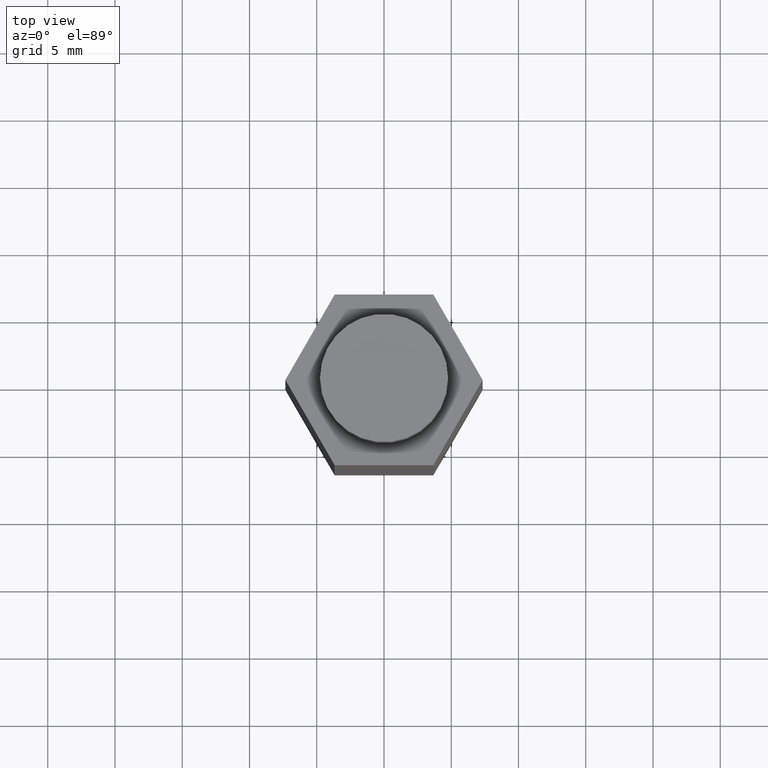
[diagram: clean part render]
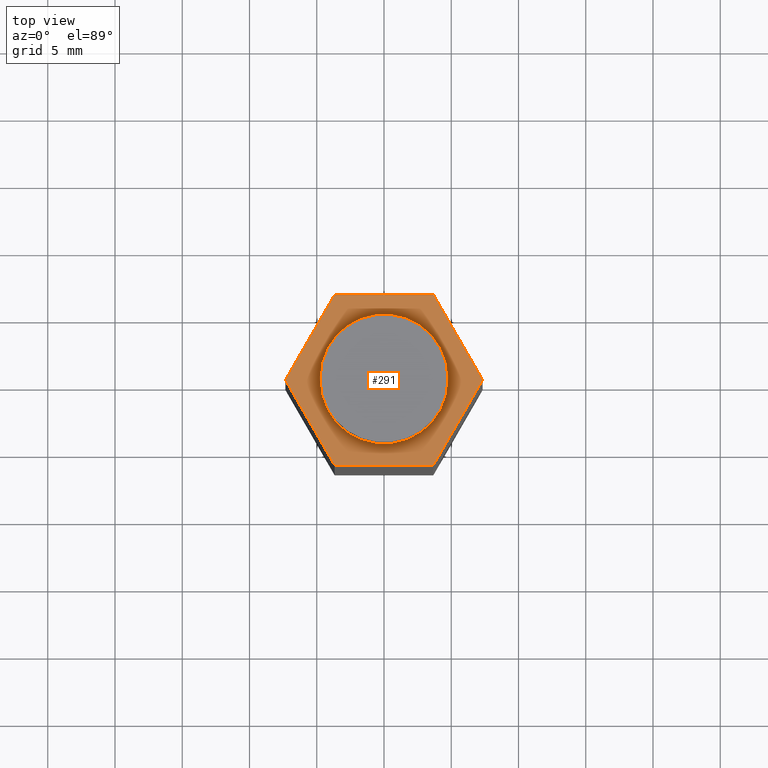
[diagram: same view with one face highlighted and labeled with its STEP entity id]
A machine part, top view. The second image highlights one B-rep face of the part: STEP entity #291.
In plain terms, the highlighted planar face has unit normal (0, 0, 1).
Its self-contained STEP definition (entity closure, byte-faithful):
#7 = AXIS2_PLACEMENT_3D ( 'NONE', #204, #34, #60 ) ;
#10 = DIRECTION ( 'NONE',  ( -0.5000000000000000000, -0.8660254037844386000, 0.0000000000000000000 ) ) ;
#17 = CARTESIAN_POINT ( 'NONE',  ( -0.1443375672974062700, -0.2500000000000001100, 1.687000000000000100 ) ) ;
#22 = CIRCLE ( 'NONE', #253, 0.1873999999999999800 ) ;
#26 = CARTESIAN_POINT ( 'NONE',  ( -0.2886751345948129200, 3.414809992080329000E-017, 1.687000000000000100 ) ) ;
#29 = CARTESIAN_POINT ( 'NONE',  ( -0.1873999999999999800, 0.0000000000000000000, 1.687000000000000100 ) ) ;
#31 = VECTOR ( 'NONE', #66, 39.37007874015748100 ) ;
#34 = DIRECTION ( 'NONE',  ( 0.0000000000000000000, 0.0000000000000000000, 1.000000000000000000 ) ) ;
#38 = DIRECTION ( 'NONE',  ( 0.5000000000000003300, -0.8660254037844383700, 0.0000000000000000000 ) ) ;
#39 = VECTOR ( 'NONE', #38, 39.37007874015748100 ) ;
#41 = EDGE_LOOP ( 'NONE', ( #225, #187 ) ) ;
#53 = EDGE_LOOP ( 'NONE', ( #134, #352, #96, #108, #169, #71 ) ) ;
#60 = DIRECTION ( 'NONE',  ( 1.000000000000000000, 0.0000000000000000000, -0.0000000000000000000 ) ) ;
#64 = DIRECTION ( 'NONE',  ( -1.000000000000000000, -1.182924880895401300E-016, 0.0000000000000000000 ) ) ;
#66 = DIRECTION ( 'NONE',  ( 1.000000000000000000, 2.365849761790803000E-016, 0.0000000000000000000 ) ) ;
#69 = VECTOR ( 'NONE', #64, 39.37007874015748100 ) ;
#71 = ORIENTED_EDGE ( 'NONE', *, *, #247, .T. ) ;
#75 = VERTEX_POINT ( 'NONE', #26 ) ;
#78 = CARTESIAN_POINT ( 'NONE',  ( 0.1443375672974063800, 0.2500000000000000600, 1.687000000000000100 ) ) ;
#84 = DIRECTION ( 'NONE',  ( -0.5000000000000002200, 0.8660254037844384900, 0.0000000000000000000 ) ) ;
#87 = VERTEX_POINT ( 'NONE', #136 ) ;
#91 = VECTOR ( 'NONE', #10, 39.37007874015748900 ) ;
#96 = ORIENTED_EDGE ( 'NONE', *, *, #202, .T. ) ;
#100 = VERTEX_POINT ( 'NONE', #29 ) ;
#104 = VERTEX_POINT ( 'NONE', #78 ) ;
#108 = ORIENTED_EDGE ( 'NONE', *, *, #327, .T. ) ;
#127 = EDGE_CURVE ( 'NONE', #219, #296, #349, .T. ) ;
#131 = CIRCLE ( 'NONE', #174, 0.1873999999999999800 ) ;
#134 = ORIENTED_EDGE ( 'NONE', *, *, #351, .T. ) ;
#136 = CARTESIAN_POINT ( 'NONE',  ( 0.1873999999999999800, 2.294988101602139800E-017, 1.687000000000000100 ) ) ;
#140 = VERTEX_POINT ( 'NONE', #221 ) ;
#143 = CARTESIAN_POINT ( 'NONE',  ( 0.2886751345948129200, -7.469896857675719000E-018, 1.687000000000000100 ) ) ;
#144 = CARTESIAN_POINT ( 'NONE',  ( -0.2886751345948129200, 3.414809992080329000E-017, 1.687000000000000100 ) ) ;
#145 = LINE ( 'NONE', #273, #269 ) ;
#149 = LINE ( 'NONE', #144, #39 ) ;
#156 = LINE ( 'NONE', #228, #91 ) ;
#161 = EDGE_CURVE ( 'NONE', #100, #87, #131, .T. ) ;
#165 = DIRECTION ( 'NONE',  ( 0.4999999999999998300, 0.8660254037844386000, 0.0000000000000000000 ) ) ;
#167 = CARTESIAN_POINT ( 'NONE',  ( 0.0000000000000000000, 0.0000000000000000000, 1.687000000000000100 ) ) ;
#169 = ORIENTED_EDGE ( 'NONE', *, *, #262, .T. ) ;
#174 = AXIS2_PLACEMENT_3D ( 'NONE', #167, #248, #188 ) ;
#176 = DIRECTION ( 'NONE',  ( 0.0000000000000000000, 0.0000000000000000000, 1.000000000000000000 ) ) ;
#178 = LINE ( 'NONE', #344, #69 ) ;
#187 = ORIENTED_EDGE ( 'NONE', *, *, #266, .F. ) ;
#188 = DIRECTION ( 'NONE',  ( 1.000000000000000000, 0.0000000000000000000, 0.0000000000000000000 ) ) ;
#202 = EDGE_CURVE ( 'NONE', #296, #104, #145, .T. ) ;
#204 = CARTESIAN_POINT ( 'NONE',  ( 0.1443375672974065200, -0.2500000000000000600, 1.687000000000000100 ) ) ;
#219 = VERTEX_POINT ( 'NONE', #279 ) ;
#221 = CARTESIAN_POINT ( 'NONE',  ( -0.1443375672974064600, 0.2500000000000000600, 1.687000000000000100 ) ) ;
#224 = DIRECTION ( 'NONE',  ( 1.000000000000000000, 0.0000000000000000000, 0.0000000000000000000 ) ) ;
#225 = ORIENTED_EDGE ( 'NONE', *, *, #161, .F. ) ;
#228 = CARTESIAN_POINT ( 'NONE',  ( -0.1443375672974064600, 0.2500000000000000600, 1.687000000000000100 ) ) ;
#229 = CARTESIAN_POINT ( 'NONE',  ( -0.1443375672974062700, -0.2500000000000001100, 1.687000000000000100 ) ) ;
#233 = FACE_BOUND ( 'NONE', #41, .T. ) ;
#247 = EDGE_CURVE ( 'NONE', #75, #357, #149, .T. ) ;
#248 = DIRECTION ( 'NONE',  ( 0.0000000000000000000, 0.0000000000000000000, 1.000000000000000000 ) ) ;
#250 = FACE_OUTER_BOUND ( 'NONE', #53, .T. ) ;
#253 = AXIS2_PLACEMENT_3D ( 'NONE', #343, #176, #224 ) ;
#262 = EDGE_CURVE ( 'NONE', #140, #75, #156, .T. ) ;
#263 = LINE ( 'NONE', #17, #31 ) ;
#266 = EDGE_CURVE ( 'NONE', #87, #100, #22, .T. ) ;
#269 = VECTOR ( 'NONE', #84, 39.37007874015749600 ) ;
#271 = CARTESIAN_POINT ( 'NONE',  ( 0.1443375672974065200, -0.2500000000000000600, 1.687000000000000100 ) ) ;
#273 = CARTESIAN_POINT ( 'NONE',  ( 0.2886751345948129200, -7.469896857675719000E-018, 1.687000000000000100 ) ) ;
#279 = CARTESIAN_POINT ( 'NONE',  ( 0.1443375672974065200, -0.2500000000000000600, 1.687000000000000100 ) ) ;
#291 = ADVANCED_FACE ( 'NONE', ( #250, #233 ), #312, .T. ) ;
#296 = VERTEX_POINT ( 'NONE', #143 ) ;
#312 = PLANE ( 'NONE',  #7 ) ;
#327 = EDGE_CURVE ( 'NONE', #104, #140, #178, .T. ) ;
#343 = CARTESIAN_POINT ( 'NONE',  ( 0.0000000000000000000, 0.0000000000000000000, 1.687000000000000100 ) ) ;
#344 = CARTESIAN_POINT ( 'NONE',  ( 0.1443375672974063800, 0.2500000000000000600, 1.687000000000000100 ) ) ;
#345 = VECTOR ( 'NONE', #165, 39.37007874015748900 ) ;
#349 = LINE ( 'NONE', #271, #345 ) ;
#351 = EDGE_CURVE ( 'NONE', #357, #219, #263, .T. ) ;
#352 = ORIENTED_EDGE ( 'NONE', *, *, #127, .T. ) ;
#357 = VERTEX_POINT ( 'NONE', #229 ) ;